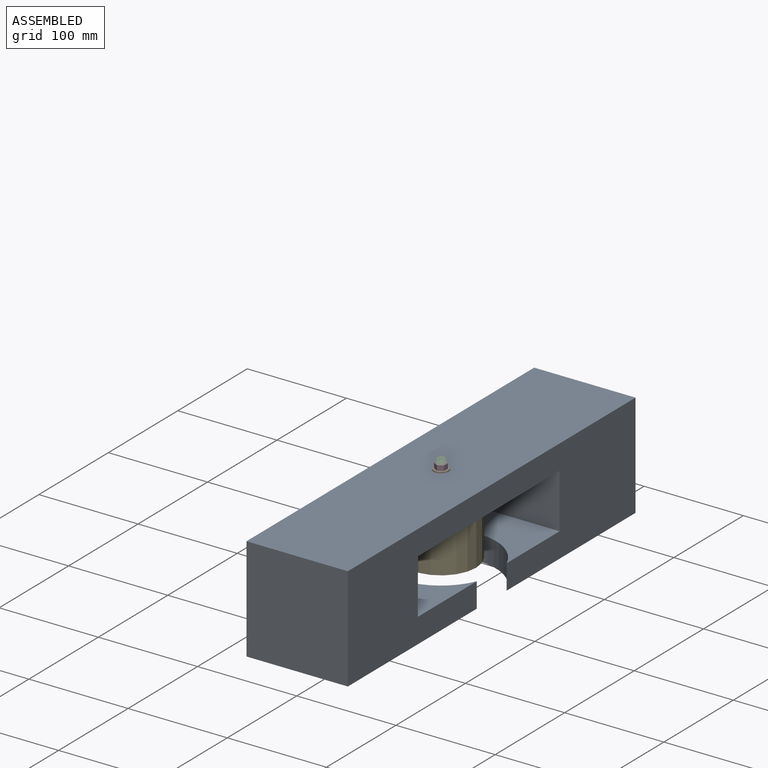
[diagram: assembled view]
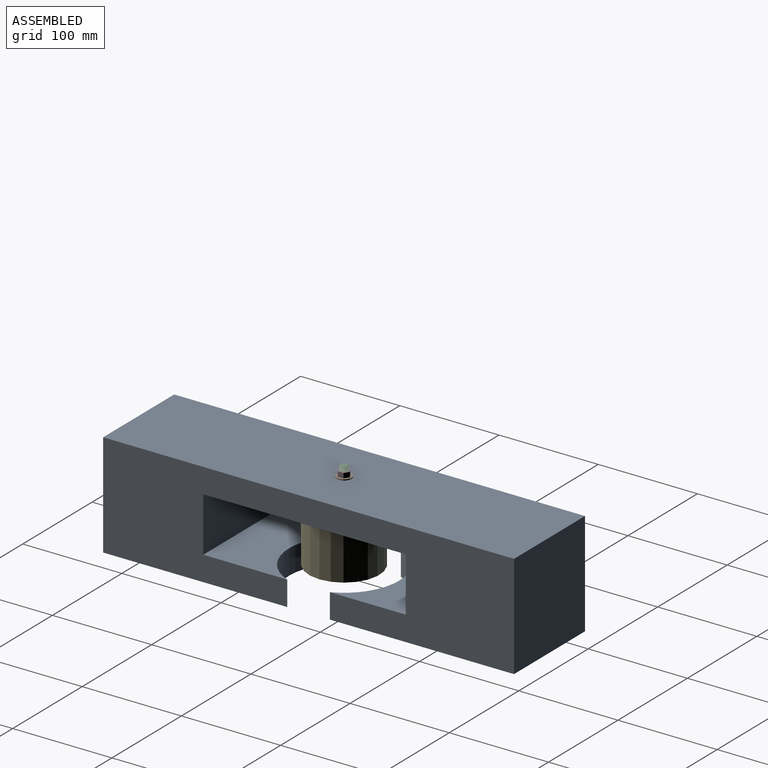
[diagram: assembled view, second angle]
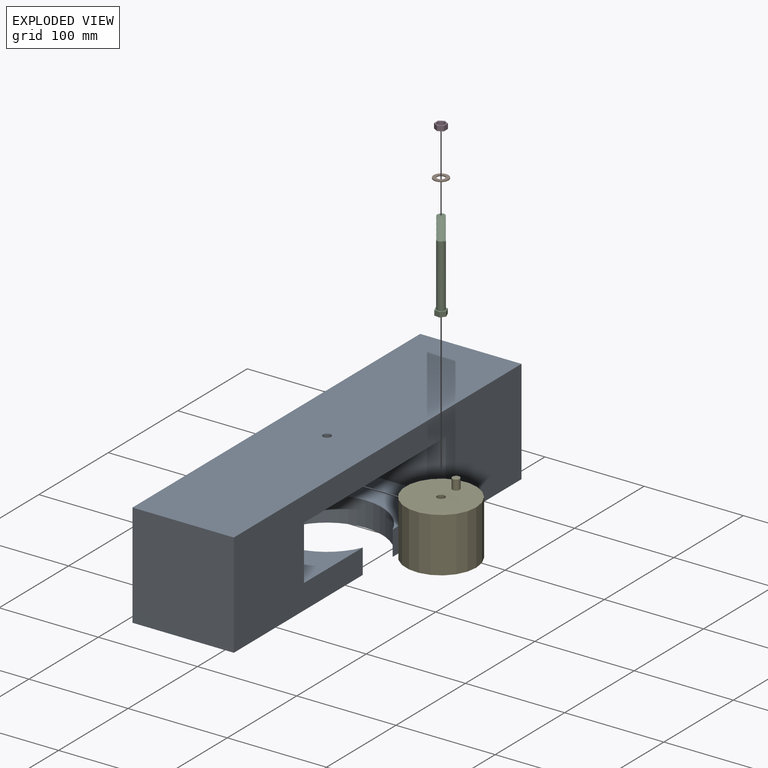
[diagram: exploded view]
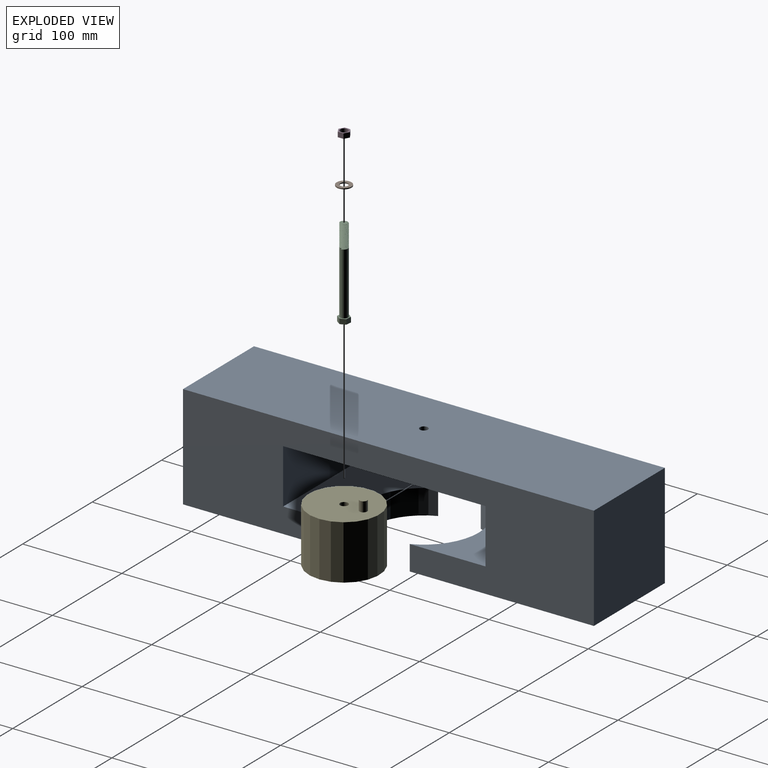
[diagram: exploded view, second angle]
ASSEMBLY  parts=5 mates=5
PART A: 17 faces, bbox 102.2x414.1x105 mm
  f0: plane 102.16x84.68mm, normal (0,0,1), area 6146.4mm2, adj f4,f6,f10,f14
  f1: plane 185.58x102.16mm, normal (0,0,-1), area 16455.6mm2, adj f4,f5,f6,f14
  f2: plane 204.04x102.16mm, normal (0,0,-1), area 20723.3mm2, adj f4,f6,f8,f9,f10,f15
  f3: plane 105x102.16mm, normal (0,1,0), area 10727.2mm2, adj f4,f6,f7,f12
  f4: plane 414.11x105mm, normal (-1,0,0), area 31186mm2, adj f0,f1,f2,f3,f5,f7,f9,f10
  f5: plane 105x102.16mm, normal (0,-1,0), area 10727.2mm2, adj f1,f4,f6,f7
  f6: plane 414.11x105mm, normal (1,0,0), area 31186mm2, adj f0,f1,f2,f3,f5,f7,f9,f10
  f7: plane 414.11x102.16mm, normal (0,0,1), area 42255.9mm2, adj f3,f4,f5,f6,f8
  f8: cylinder r=4.05mm len=25mm, axis (0,0,-1), area 636.2mm2, adj f2,f7
  f9: plane 102.16x55mm, normal (0,-1,0), area 5619mm2, adj f2,f4,f6,f11
  f10: plane 102.16x55mm, normal (0,1,0), area 5619mm2, adj f0,f2,f4,f6
  f11: plane 102.16x76.42mm, normal (0,0,1), area 5302.7mm2, adj f4,f6,f9,f13
  f12: plane 185.58x102.16mm, normal (0,0,-1), area 16455.6mm2, adj f3,f4,f6,f13
  f13: cylinder r=55.41mm len=102.16mm, axis (0,0,1), area 3249.5mm2, adj f4,f6,f11,f12
  f14: cylinder r=55.41mm len=102.16mm, axis (0,0,1), area 3249.5mm2, adj f0,f1,f4,f6
  f15: cylinder r=4.74mm len=10mm, axis (0,0,-1), area 297.7mm2, adj f2,f16
  f16: plane 9.48x9.48mm, normal (0,0,-1), area 70.5mm2, adj f15
PART B: 4 faces, bbox 15x15x1 mm
  f0: cylinder r=4mm len=8mm, axis (0,0,-1), area 25.1mm2, adj f2,f3
  f1: cylinder r=7.5mm len=15mm, axis (0,0,-1), area 47.1mm2, adj f2,f3
  f2: plane 15x15mm, normal (0,0,1), area 126.4mm2, adj f0,f1
  f3: plane 15x15mm, normal (0,0,-1), area 126.4mm2, adj f0,f1
PART C: 36 faces, bbox 11.9x11.1x91.6 mm
  f0: cylinder r=4mm len=63.57mm, axis (0,0,1), area 1584.6mm2, adj f22,f31,f33,f34,f35
  f1: cylinder r=4mm len=8mm, axis (0,0,1), area 0mm2, adj f2,f32,f33,f34
  f2: cylinder r=4mm len=8mm, axis (0,0,1), area 0.1mm2, adj f1,f3,f33,f34
  f3: cylinder r=4mm len=8mm, axis (0,0,1), area 0.1mm2, adj f2,f4,f33,f34
  f4: cylinder r=4mm len=8mm, axis (0,0,1), area 0.1mm2, adj f3,f5,f33,f34
  f5: cylinder r=4mm len=8mm, axis (0,0,1), area 0.1mm2, adj f4,f6,f33,f34
  f6: cylinder r=4mm len=8mm, axis (0,0,1), area 0.1mm2, adj f5,f7,f33,f34
  f7: cylinder r=4mm len=8mm, axis (0,0,1), area 0.1mm2, adj f6,f8,f33,f34
  f8: cylinder r=4mm len=8mm, axis (0,0,1), area 0.1mm2, adj f7,f9,f33,f34
  f9: cylinder r=4mm len=8mm, axis (0,0,1), area 0.1mm2, adj f8,f10,f33,f34
  f10: cylinder r=4mm len=8mm, axis (0,0,1), area 0.1mm2, adj f9,f11,f33,f34
  f11: cylinder r=4mm len=8mm, axis (0,0,1), area 0.1mm2, adj f10,f12,f33,f34
  f12: cylinder r=4mm len=8mm, axis (0,0,1), area 0.1mm2, adj f11,f13,f33,f34
  f13: cylinder r=4mm len=8mm, axis (0,0,1), area 0.1mm2, adj f12,f14,f33,f34
  f14: cylinder r=4mm len=8mm, axis (0,0,1), area 0.1mm2, adj f13,f15,f33,f34
  f15: cylinder r=4mm len=8mm, axis (0,0,1), area 0.1mm2, adj f14,f16,f33,f34
  f16: cylinder r=4mm len=8mm, axis (0,0,1), area 0.1mm2, adj f15,f17,f33,f34
  f17: cylinder r=4mm len=8mm, axis (0,0,1), area 0.1mm2, adj f16,f18,f33,f34
  f18: cylinder r=4mm len=8mm, axis (0,0,1), area 0.1mm2, adj f17,f19,f33,f34
  f19: cylinder r=4mm len=8mm, axis (0,0,1), area 0.1mm2, adj f18,f20,f33,f34
  f20: cylinder r=4mm len=8mm, axis (0,0,1), area 0.1mm2, adj f19,f21,f33,f34
  f21: cylinder r=4mm len=8mm, axis (0,0,1), area 0.1mm2, adj f20,f22,f33,f34
  f22: cylinder r=4mm len=8mm, axis (0,0,1), area 0.1mm2, adj f0,f21,f33,f34
  f23: plane 7.08x6.9mm, normal (0,0,-1), area 34.6mm2, adj f32,f33,f34
  f24: plane 5x4.69mm, normal (-0.8,-0.6,0), area 29.2mm2, adj f25,f29,f30,f31
  f25: plane 5.8x5mm, normal (0.11,-0.99,0), area 29.2mm2, adj f24,f26,f30,f31
  f26: plane 5.36x5mm, normal (0.92,-0.4,0), area 29.2mm2, adj f25,f27,f30,f31
  f27: plane 5x4.69mm, normal (0.8,0.6,0), area 29.2mm2, adj f26,f28,f30,f31
  f28: plane 5.8x5mm, normal (-0.11,0.99,0), area 29.2mm2, adj f27,f29,f30,f31
  f29: plane 5.36x5mm, normal (-0.92,0.4,0), area 29.2mm2, adj f24,f28,f30,f31
  f30: plane 11.6x10.72mm, normal (0,0,1), area 88.6mm2, adj f24,f25,f26,f27,f28,f29
  f31: plane 11.6x10.72mm, normal (0,0,-1), area 38.4mm2, adj f0,f24,f25,f26,f27,f28,f29
  f32: torus R=3.5mm, axis (0,0,1), area 3.1mm2, adj f1,f23,f33,f34
  f33: bspline ~23.11x9.1mm, area 594.2mm2, adj f0,f1,f2,f3,f4,f5,f6,f7
  f34: bspline ~23.55x9.1mm, area 631.5mm2, adj f0,f1,f2,f3,f4,f5,f6,f7
  f35: plane 1.14x1mm, normal (0.17,-0.98,0), area 0.6mm2, adj f0,f33,f34
PART D: 9 faces, bbox 10x11.5x5 mm
  f0: plane 5x5mm, normal (0.5,0.87,0), area 28.9mm2, adj f1,f5,f7,f8
  f1: plane 5x5mm, normal (-0.5,0.87,0), area 28.9mm2, adj f0,f2,f7,f8
  f2: plane 5.77x5mm, normal (-1,0,0), area 28.9mm2, adj f1,f3,f7,f8
  f3: plane 5x5mm, normal (-0.5,-0.87,0), area 28.9mm2, adj f2,f4,f7,f8
  f4: plane 5x5mm, normal (0.5,-0.87,0), area 28.9mm2, adj f3,f5,f7,f8
  f5: plane 5.77x5mm, normal (1,0,0), area 28.9mm2, adj f0,f4,f7,f8
  f6: cylinder r=4mm len=8mm, axis (0,0,-1), area 125.7mm2, adj f7,f8
  f7: plane 11.55x10mm, normal (0,0,1), area 36.3mm2, adj f0,f1,f2,f3,f4,f5,f6
  f8: plane 11.55x10mm, normal (0,0,-1), area 36.3mm2, adj f0,f1,f2,f3,f4,f5,f6
PART E: 33 faces, bbox 70.7x70.9x65 mm
  f0: cylinder r=4.05mm len=50mm, axis (0,0,-1), area 1272.3mm2, adj f22,f30
  f1: plane 55x10.49mm, normal (0.99,0.15,0), area 583.2mm2, adj f2,f21,f22,f23
  f2: plane 55x9.55mm, normal (0.9,0.43,0), area 583.2mm2, adj f1,f3,f22,f23
  f3: plane 55x7.77mm, normal (0.73,0.68,0), area 583.2mm2, adj f2,f4,f22,f23
  f4: plane 55x9.18mm, normal (0.5,0.87,0), area 583.2mm2, adj f3,f5,f22,f23
  f5: plane 55x10.34mm, normal (0.22,0.97,0), area 583.2mm2, adj f4,f6,f22,f23
  f6: plane 55x10.57mm, normal (-0.07,1,0), area 583.2mm2, adj f5,f7,f22,f23
  f7: plane 55x9.87mm, normal (-0.37,0.93,0), area 583.2mm2, adj f6,f8,f22,f23
  f8: plane 55x8.29mm, normal (-0.62,0.78,0), area 583.2mm2, adj f7,f9,f22,f23
  f9: plane 55x8.76mm, normal (-0.83,0.56,0), area 583.2mm2, adj f8,f10,f22,f23
  f10: plane 55x10.13mm, normal (-0.96,0.29,0), area 583.2mm2, adj f9,f11,f22,f23
  f11: plane 55x10.6mm, normal (-1,0,0), area 583.2mm2, adj f10,f12,f22,f23
  f12: plane 55x10.13mm, normal (-0.96,-0.29,0), area 583.2mm2, adj f11,f13,f22,f23
  f13: plane 55x8.76mm, normal (-0.83,-0.56,0), area 583.2mm2, adj f12,f14,f22,f23
  f14: plane 55x8.29mm, normal (-0.62,-0.78,0), area 583.2mm2, adj f13,f15,f22,f23
  f15: plane 55x9.87mm, normal (-0.37,-0.93,0), area 583.2mm2, adj f14,f16,f22,f23
  f16: plane 55x10.57mm, normal (-0.07,-1,0), area 583.2mm2, adj f15,f17,f22,f23
  f17: plane 55x10.34mm, normal (0.22,-0.97,0), area 583.2mm2, adj f16,f18,f22,f23
  f18: plane 55x9.18mm, normal (0.5,-0.87,0), area 583.2mm2, adj f17,f19,f22,f23
  f19: plane 55x7.77mm, normal (0.73,-0.68,0), area 583.2mm2, adj f18,f20,f22,f23
  f20: plane 55x9.55mm, normal (0.9,-0.43,0), area 583.2mm2, adj f19,f21,f22,f23
  f21: plane 55x10.49mm, normal (0.99,-0.15,0), area 583.2mm2, adj f1,f20,f22,f23
  f22: plane 70.94x70.75mm, normal (0,0,1), area 3820.7mm2, adj f0,f1,f2,f3,f4,f5,f6,f7
  f23: plane 70.94x70.75mm, normal (0,0,-1), area 3809.1mm2, adj f1,f2,f3,f4,f5,f6,f7,f8
  f24: plane 5.16x5mm, normal (0.8,-0.6,0), area 32.1mm2, adj f23,f25,f29,f30
  f25: plane 6.38x5mm, normal (-0.11,-0.99,0), area 32.1mm2, adj f23,f24,f26,f30
  f26: plane 5.89x5mm, normal (-0.92,-0.4,0), area 32.1mm2, adj f23,f25,f27,f30
  f27: plane 5.16x5mm, normal (-0.8,0.6,0), area 32.1mm2, adj f23,f26,f28,f30
  f28: plane 6.38x5mm, normal (0.11,0.99,0), area 32.1mm2, adj f23,f27,f29,f30
  f29: plane 5.89x5mm, normal (0.92,0.4,0), area 32.1mm2, adj f23,f24,f28,f30
  f30: plane 12.75x11.78mm, normal (0,0,-1), area 55.5mm2, adj f0,f24,f25,f26,f27,f28,f29
  f31: cylinder r=3.74mm len=10mm, axis (0,0,-1), area 234.9mm2, adj f22,f32
  f32: plane 7.48x7.48mm, normal (0,0,1), area 43.9mm2, adj f31
PLACE A t=(-13.71,4.96,-3.55)mm
PLACE B rot(axis=(1,0,0),180deg) t=(-13.71,-15.57,22.45)mm
PLACE C rot(axis=(1,0,0),180deg) t=(-13.71,-15.57,-53.55)mm
PLACE D t=(-13.71,-15.57,22.45)mm
PLACE E t=(4.53,-44.8,-58.55)mm
MATE pin_slot B.f0 <-> A.f8  axis (0,0,-1) through (-13.71,-15.57,21.45)mm
MATE pin_slot E.f0 <-> A.f8  axis (0,0,1) through (-13.71,-15.57,-3.55)mm
MATE pin_slot C.f0 <-> E.f0  axis (0,0,-1) through (-13.71,-15.57,-53.55)mm
MATE pin_slot D.f6 <-> B.f0  axis (0,0,-1) through (-13.71,-15.57,22.45)mm
MATE parallel E.f0 <-> A.f8  axis (0,0,1) through (-13.71,-15.57,-3.55)mm
